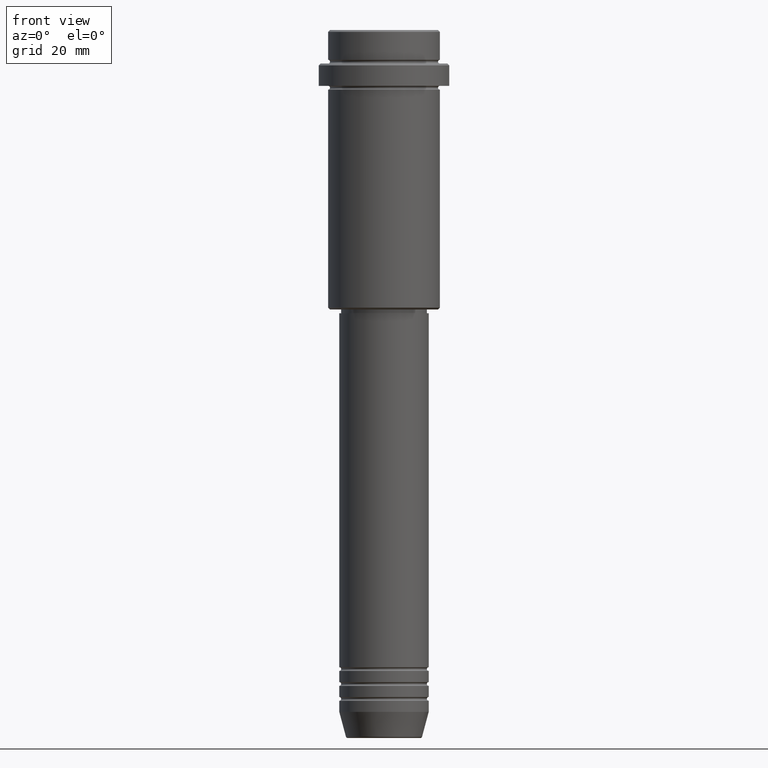
[diagram: clean part render]
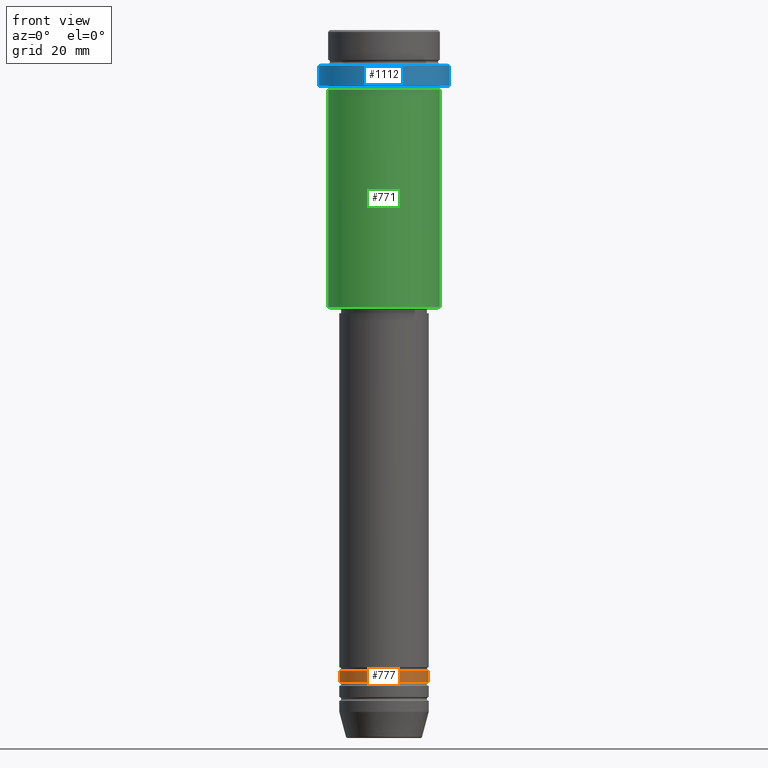
[diagram: same view with three faces highlighted in distinct colors, each labeled with its STEP entity id]
A machine part, front view with three faces highlighted in distinct colors.
Their STEP definitions:

[orange] entity #777 — the highlighted cylindrical surface (partial cylindrical patch) has radius 12 mm, axis along (-0, -0, 1).
#59 = ORIENTED_EDGE ( 'NONE', *, *, #592, .F. ) ;
#75 = CARTESIAN_POINT ( 'NONE',  ( -12.00000000000000000, 1.469576158976823947E-15, 0.000000000000000000 ) ) ;
#120 = DIRECTION ( 'NONE',  ( -0.000000000000000000, -0.000000000000000000, 1.000000000000000000 ) ) ;
#121 = AXIS2_PLACEMENT_3D ( 'NONE', #572, #120, #1004 ) ;
#139 = CARTESIAN_POINT ( 'NONE',  ( 0.000000000000000000, 0.000000000000000000, -174.9999999999999147 ) ) ;
#175 = DIRECTION ( 'NONE',  ( 1.000000000000000000, 0.000000000000000000, 0.000000000000000000 ) ) ;
#263 = DIRECTION ( 'NONE',  ( -0.000000000000000000, -0.000000000000000000, 1.000000000000000000 ) ) ;
#313 = EDGE_LOOP ( 'NONE', ( #59, #704, #1322, #571 ) ) ;
#339 = CYLINDRICAL_SURFACE ( 'NONE', #121, 12.00000000000000000 ) ;
#384 = CARTESIAN_POINT ( 'NONE',  ( -12.00000000000000000, 1.469576158976823947E-15, -174.9999999999999147 ) ) ;
#492 = VERTEX_POINT ( 'NONE', #813 ) ;
#571 = ORIENTED_EDGE ( 'NONE', *, *, #1103, .F. ) ;
#572 = CARTESIAN_POINT ( 'NONE',  ( 0.000000000000000000, 0.000000000000000000, 0.000000000000000000 ) ) ;
#592 = EDGE_CURVE ( 'NONE', #1224, #492, #860, .T. ) ;
#704 = ORIENTED_EDGE ( 'NONE', *, *, #871, .T. ) ;
#721 = CARTESIAN_POINT ( 'NONE',  ( 12.00000000000000000, 0.000000000000000000, 0.000000000000000000 ) ) ;
#726 = CARTESIAN_POINT ( 'NONE',  ( 0.000000000000000000, 0.000000000000000000, -171.9999999999999147 ) ) ;
#735 = CARTESIAN_POINT ( 'NONE',  ( 12.00000000000000000, 0.000000000000000000, -174.9999999999999147 ) ) ;
#777 = ADVANCED_FACE ( 'NONE', ( #999 ), #339, .T. ) ;
#813 = CARTESIAN_POINT ( 'NONE',  ( -12.00000000000000000, 1.469576158976823947E-15, -171.9999999999999147 ) ) ;
#817 = DIRECTION ( 'NONE',  ( -0.000000000000000000, -0.000000000000000000, 1.000000000000000000 ) ) ;
#855 = VECTOR ( 'NONE', #817, 1000.000000000000000 ) ;
#860 = LINE ( 'NONE', #75, #901 ) ;
#861 = CARTESIAN_POINT ( 'NONE',  ( 12.00000000000000000, 0.000000000000000000, -171.9999999999999147 ) ) ;
#871 = EDGE_CURVE ( 'NONE', #1224, #1060, #1145, .T. ) ;
#901 = VECTOR ( 'NONE', #1362, 1000.000000000000000 ) ;
#903 = AXIS2_PLACEMENT_3D ( 'NONE', #726, #1153, #175 ) ;
#936 = DIRECTION ( 'NONE',  ( 1.000000000000000000, 0.000000000000000000, 0.000000000000000000 ) ) ;
#977 = LINE ( 'NONE', #721, #855 ) ;
#999 = FACE_OUTER_BOUND ( 'NONE', #313, .T. ) ;
#1004 = DIRECTION ( 'NONE',  ( 1.000000000000000000, 0.000000000000000000, 0.000000000000000000 ) ) ;
#1060 = VERTEX_POINT ( 'NONE', #735 ) ;
#1103 = EDGE_CURVE ( 'NONE', #492, #1405, #1243, .T. ) ;
#1138 = EDGE_CURVE ( 'NONE', #1060, #1405, #977, .T. ) ;
#1145 = CIRCLE ( 'NONE', #1287, 12.00000000000000000 ) ;
#1153 = DIRECTION ( 'NONE',  ( -0.000000000000000000, -0.000000000000000000, 1.000000000000000000 ) ) ;
#1224 = VERTEX_POINT ( 'NONE', #384 ) ;
#1243 = CIRCLE ( 'NONE', #903, 12.00000000000000000 ) ;
#1287 = AXIS2_PLACEMENT_3D ( 'NONE', #139, #263, #936 ) ;
#1322 = ORIENTED_EDGE ( 'NONE', *, *, #1138, .T. ) ;
#1362 = DIRECTION ( 'NONE',  ( -0.000000000000000000, -0.000000000000000000, 1.000000000000000000 ) ) ;
#1405 = VERTEX_POINT ( 'NONE', #861 ) ;

[blue] entity #1112 — the highlighted cylindrical surface (partial cylindrical patch) has radius 17.5 mm, axis along (-0, -0, 1).
#51 = ORIENTED_EDGE ( 'NONE', *, *, #702, .F. ) ;
#80 = EDGE_CURVE ( 'NONE', #729, #393, #159, .T. ) ;
#105 = CYLINDRICAL_SURFACE ( 'NONE', #582, 17.50000000000000000 ) ;
#151 = DIRECTION ( 'NONE',  ( 1.000000000000000000, 0.000000000000000000, 0.000000000000000000 ) ) ;
#159 = LINE ( 'NONE', #693, #782 ) ;
#281 = AXIS2_PLACEMENT_3D ( 'NONE', #390, #1360, #151 ) ;
#283 = CARTESIAN_POINT ( 'NONE',  ( -17.50000000000000000, 2.143131898507868248E-15, -15.00000000000000178 ) ) ;
#285 = DIRECTION ( 'NONE',  ( 1.000000000000000000, 0.000000000000000000, 0.000000000000000000 ) ) ;
#291 = DIRECTION ( 'NONE',  ( -0.000000000000000000, -0.000000000000000000, 1.000000000000000000 ) ) ;
#294 = VERTEX_POINT ( 'NONE', #1292 ) ;
#307 = AXIS2_PLACEMENT_3D ( 'NONE', #747, #291, #285 ) ;
#321 = DIRECTION ( 'NONE',  ( -0.000000000000000000, -0.000000000000000000, 1.000000000000000000 ) ) ;
#390 = CARTESIAN_POINT ( 'NONE',  ( 0.000000000000000000, 0.000000000000000000, -9.500000000000001776 ) ) ;
#393 = VERTEX_POINT ( 'NONE', #1241 ) ;
#452 = ORIENTED_EDGE ( 'NONE', *, *, #80, .T. ) ;
#543 = FACE_OUTER_BOUND ( 'NONE', #1139, .T. ) ;
#582 = AXIS2_PLACEMENT_3D ( 'NONE', #1300, #321, #653 ) ;
#653 = DIRECTION ( 'NONE',  ( 1.000000000000000000, 0.000000000000000000, 0.000000000000000000 ) ) ;
#677 = CARTESIAN_POINT ( 'NONE',  ( -17.50000000000000000, 2.143131898507868248E-15, 0.000000000000000000 ) ) ;
#693 = CARTESIAN_POINT ( 'NONE',  ( 17.50000000000000000, 0.000000000000000000, 0.000000000000000000 ) ) ;
#702 = EDGE_CURVE ( 'NONE', #1102, #294, #1324, .T. ) ;
#729 = VERTEX_POINT ( 'NONE', #1319 ) ;
#747 = CARTESIAN_POINT ( 'NONE',  ( 0.000000000000000000, 0.000000000000000000, -15.00000000000000178 ) ) ;
#782 = VECTOR ( 'NONE', #1123, 1000.000000000000000 ) ;
#991 = CIRCLE ( 'NONE', #281, 17.50000000000000000 ) ;
#1012 = CIRCLE ( 'NONE', #307, 17.50000000000000000 ) ;
#1019 = ORIENTED_EDGE ( 'NONE', *, *, #1223, .T. ) ;
#1102 = VERTEX_POINT ( 'NONE', #283 ) ;
#1112 = ADVANCED_FACE ( 'NONE', ( #543 ), #105, .T. ) ;
#1123 = DIRECTION ( 'NONE',  ( -0.000000000000000000, -0.000000000000000000, 1.000000000000000000 ) ) ;
#1139 = EDGE_LOOP ( 'NONE', ( #51, #1258, #452, #1019 ) ) ;
#1223 = EDGE_CURVE ( 'NONE', #393, #294, #991, .T. ) ;
#1225 = DIRECTION ( 'NONE',  ( -0.000000000000000000, -0.000000000000000000, 1.000000000000000000 ) ) ;
#1241 = CARTESIAN_POINT ( 'NONE',  ( 17.50000000000000000, 0.000000000000000000, -9.500000000000001776 ) ) ;
#1258 = ORIENTED_EDGE ( 'NONE', *, *, #1351, .T. ) ;
#1264 = VECTOR ( 'NONE', #1225, 1000.000000000000000 ) ;
#1292 = CARTESIAN_POINT ( 'NONE',  ( -17.50000000000000000, 2.143131898507868248E-15, -9.500000000000001776 ) ) ;
#1300 = CARTESIAN_POINT ( 'NONE',  ( 0.000000000000000000, 0.000000000000000000, 0.000000000000000000 ) ) ;
#1319 = CARTESIAN_POINT ( 'NONE',  ( 17.50000000000000000, 0.000000000000000000, -15.00000000000000178 ) ) ;
#1324 = LINE ( 'NONE', #677, #1264 ) ;
#1351 = EDGE_CURVE ( 'NONE', #1102, #729, #1012, .T. ) ;
#1360 = DIRECTION ( 'NONE',  ( 0.000000000000000000, 0.000000000000000000, -1.000000000000000000 ) ) ;

[green] entity #771 — the highlighted cylindrical surface (partial cylindrical patch) has radius 15 mm, axis along (-0, -0, 1).
#106 = VERTEX_POINT ( 'NONE', #835 ) ;
#133 = CYLINDRICAL_SURFACE ( 'NONE', #694, 15.00000000000000000 ) ;
#154 = EDGE_CURVE ( 'NONE', #1296, #960, #1374, .T. ) ;
#157 = CARTESIAN_POINT ( 'NONE',  ( -15.00000000000000000, 1.836970198721029589E-15, 0.000000000000000000 ) ) ;
#182 = CARTESIAN_POINT ( 'NONE',  ( 15.00000000000000000, 0.000000000000000000, -74.50000000000000000 ) ) ;
#232 = CARTESIAN_POINT ( 'NONE',  ( 0.000000000000000000, 0.000000000000000000, -74.50000000000000000 ) ) ;
#348 = EDGE_CURVE ( 'NONE', #414, #960, #919, .T. ) ;
#400 = CARTESIAN_POINT ( 'NONE',  ( 15.00000000000000000, 0.000000000000000000, 0.000000000000000000 ) ) ;
#414 = VERTEX_POINT ( 'NONE', #1249 ) ;
#415 = CARTESIAN_POINT ( 'NONE',  ( 15.00000000000000178, 0.000000000000000000, -16.00000000000000000 ) ) ;
#418 = VECTOR ( 'NONE', #952, 1000.000000000000000 ) ;
#441 = AXIS2_PLACEMENT_3D ( 'NONE', #1198, #772, #642 ) ;
#466 = DIRECTION ( 'NONE',  ( -0.000000000000000000, -0.000000000000000000, 1.000000000000000000 ) ) ;
#565 = DIRECTION ( 'NONE',  ( 1.000000000000000000, 0.000000000000000000, 0.000000000000000000 ) ) ;
#581 = AXIS2_PLACEMENT_3D ( 'NONE', #232, #1201, #1310 ) ;
#642 = DIRECTION ( 'NONE',  ( 1.000000000000000000, 0.000000000000000000, 0.000000000000000000 ) ) ;
#665 = ORIENTED_EDGE ( 'NONE', *, *, #1155, .F. ) ;
#686 = ORIENTED_EDGE ( 'NONE', *, *, #749, .T. ) ;
#694 = AXIS2_PLACEMENT_3D ( 'NONE', #1094, #466, #565 ) ;
#749 = EDGE_CURVE ( 'NONE', #106, #1296, #1009, .T. ) ;
#771 = ADVANCED_FACE ( 'NONE', ( #1207 ), #133, .T. ) ;
#772 = DIRECTION ( 'NONE',  ( -0.000000000000000000, -0.000000000000000000, 1.000000000000000000 ) ) ;
#779 = ORIENTED_EDGE ( 'NONE', *, *, #348, .F. ) ;
#835 = CARTESIAN_POINT ( 'NONE',  ( -15.00000000000000000, 1.836970198721029589E-15, -74.50000000000000000 ) ) ;
#870 = EDGE_LOOP ( 'NONE', ( #665, #686, #1087, #779 ) ) ;
#912 = LINE ( 'NONE', #157, #1011 ) ;
#919 = CIRCLE ( 'NONE', #441, 15.00000000000000178 ) ;
#952 = DIRECTION ( 'NONE',  ( -0.000000000000000000, -0.000000000000000000, 1.000000000000000000 ) ) ;
#960 = VERTEX_POINT ( 'NONE', #415 ) ;
#1009 = CIRCLE ( 'NONE', #581, 15.00000000000000000 ) ;
#1011 = VECTOR ( 'NONE', #1036, 1000.000000000000000 ) ;
#1036 = DIRECTION ( 'NONE',  ( -0.000000000000000000, -0.000000000000000000, 1.000000000000000000 ) ) ;
#1087 = ORIENTED_EDGE ( 'NONE', *, *, #154, .T. ) ;
#1094 = CARTESIAN_POINT ( 'NONE',  ( 0.000000000000000000, 0.000000000000000000, 0.000000000000000000 ) ) ;
#1155 = EDGE_CURVE ( 'NONE', #106, #414, #912, .T. ) ;
#1198 = CARTESIAN_POINT ( 'NONE',  ( 0.000000000000000000, 0.000000000000000000, -16.00000000000000000 ) ) ;
#1201 = DIRECTION ( 'NONE',  ( -0.000000000000000000, -0.000000000000000000, 1.000000000000000000 ) ) ;
#1207 = FACE_OUTER_BOUND ( 'NONE', #870, .T. ) ;
#1249 = CARTESIAN_POINT ( 'NONE',  ( -15.00000000000000355, 1.836970198721029983E-15, -16.00000000000000000 ) ) ;
#1296 = VERTEX_POINT ( 'NONE', #182 ) ;
#1310 = DIRECTION ( 'NONE',  ( -1.000000000000000000, 0.000000000000000000, 0.000000000000000000 ) ) ;
#1374 = LINE ( 'NONE', #400, #418 ) ;